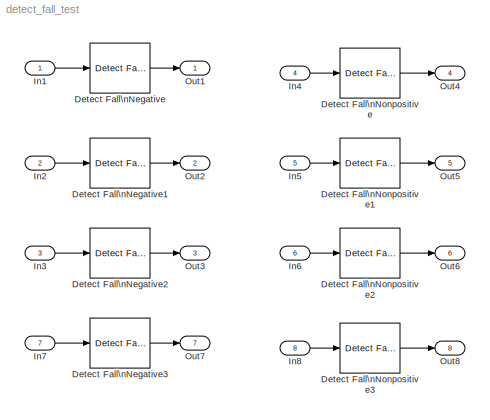
MODEL detect_fall_test
KIND model
BLOCK [Reference] Detect Fall\nNegative  REF=simulink/Logic and Bit\nOperations/Detect Fall\nNegative
  InputProcessing = Inherited
  OutDataTypeStr = boolean
  Ports = [1, 1]
  SID = 103
  SourceBlock = simulink/Logic and Bit\nOperations/Detect Fall\nNegative
  SourceProductBaseCode = SL
  SourceProductName = Simulink
  SourceType = Detect Fall Negative
  vinit = 0
BLOCK [Reference] Detect Fall\nNegative1  REF=simulink/Logic and Bit\nOperations/Detect Fall\nNegative
  InputProcessing = Inherited
  OutDataTypeStr = boolean
  Ports = [1, 1]
  SID = 105
  SourceBlock = simulink/Logic and Bit\nOperations/Detect Fall\nNegative
  SourceProductBaseCode = SL
  SourceProductName = Simulink
  SourceType = Detect Fall Negative
  vinit = 0
BLOCK [Reference] Detect Fall\nNegative2  REF=simulink/Logic and Bit\nOperations/Detect Fall\nNegative
  InputProcessing = Inherited
  OutDataTypeStr = boolean
  Ports = [1, 1]
  SID = 106
  SourceBlock = simulink/Logic and Bit\nOperations/Detect Fall\nNegative
  SourceProductBaseCode = SL
  SourceProductName = Simulink
  SourceType = Detect Fall Negative
  vinit = 0
BLOCK [Reference] Detect Fall\nNegative3  REF=simulink/Logic and Bit\nOperations/Detect Fall\nNegative
  InputProcessing = Inherited
  OutDataTypeStr = boolean
  Ports = [1, 1]
  SID = 111
  SourceBlock = simulink/Logic and Bit\nOperations/Detect Fall\nNegative
  SourceProductBaseCode = SL
  SourceProductName = Simulink
  SourceType = Detect Fall Negative
  vinit = 0
BLOCK [Reference] Detect Fall\nNonpositive  REF=simulink/Logic and Bit\nOperations/Detect Fall\nNonpositive
  InputProcessing = Inherited
  OutDataTypeStr = boolean
  Ports = [1, 1]
  SID = 104
  SourceBlock = simulink/Logic and Bit\nOperations/Detect Fall\nNonpositive
  SourceProductBaseCode = SL
  SourceProductName = Simulink
  SourceType = Detect Fall Nonpositive
  vinit = 0
BLOCK [Reference] Detect Fall\nNonpositive1  REF=simulink/Logic and Bit\nOperations/Detect Fall\nNonpositive
  InputProcessing = Inherited
  OutDataTypeStr = boolean
  Ports = [1, 1]
  SID = 107
  SourceBlock = simulink/Logic and Bit\nOperations/Detect Fall\nNonpositive
  SourceProductBaseCode = SL
  SourceProductName = Simulink
  SourceType = Detect Fall Nonpositive
  vinit = 0
BLOCK [Reference] Detect Fall\nNonpositive2  REF=simulink/Logic and Bit\nOperations/Detect Fall\nNonpositive
  InputProcessing = Inherited
  OutDataTypeStr = boolean
  Ports = [1, 1]
  SID = 108
  SourceBlock = simulink/Logic and Bit\nOperations/Detect Fall\nNonpositive
  SourceProductBaseCode = SL
  SourceProductName = Simulink
  SourceType = Detect Fall Nonpositive
  vinit = 0
BLOCK [Reference] Detect Fall\nNonpositive3  REF=simulink/Logic and Bit\nOperations/Detect Fall\nNonpositive
  InputProcessing = Inherited
  OutDataTypeStr = boolean
  Ports = [1, 1]
  SID = 112
  SourceBlock = simulink/Logic and Bit\nOperations/Detect Fall\nNonpositive
  SourceProductBaseCode = SL
  SourceProductName = Simulink
  SourceType = Detect Fall Nonpositive
  vinit = 0
BLOCK [Inport] In1
  IconDisplay = Port number
  PortDimensions = 1
  SID = 1
BLOCK [Inport] In2
  IconDisplay = Port number
  Port = 2
  PortDimensions = 5
  SID = 77
BLOCK [Inport] In3
  IconDisplay = Port number
  OutDataTypeStr = int8
  Port = 3
  PortDimensions = [2 3]
  SID = 80
BLOCK [Inport] In4
  IconDisplay = Port number
  Port = 4
  PortDimensions = 1
  SID = 89
BLOCK [Inport] In5
  IconDisplay = Port number
  Port = 5
  PortDimensions = 5
  SID = 90
BLOCK [Inport] In6
  IconDisplay = Port number
  OutDataTypeStr = int8
  Port = 6
  PortDimensions = [2 3]
  SID = 91
BLOCK [Inport] In7
  IconDisplay = Port number
  OutDataTypeStr = boolean
  Port = 7
  PortDimensions = 1
  SID = 109
BLOCK [Inport] In8
  IconDisplay = Port number
  OutDataTypeStr = boolean
  Port = 8
  PortDimensions = 1
  SID = 110
BLOCK [Outport] Out1
  IconDisplay = Port number
  SID = 55
BLOCK [Outport] Out2
  IconDisplay = Port number
  Port = 2
  SID = 79
BLOCK [Outport] Out3
  IconDisplay = Port number
  Port = 3
  SID = 82
BLOCK [Outport] Out4
  IconDisplay = Port number
  Port = 4
  SID = 97
BLOCK [Outport] Out5
  IconDisplay = Port number
  Port = 5
  SID = 98
BLOCK [Outport] Out6
  IconDisplay = Port number
  Port = 6
  SID = 99
BLOCK [Outport] Out7
  IconDisplay = Port number
  Port = 7
  SID = 113
BLOCK [Outport] Out8
  IconDisplay = Port number
  Port = 8
  SID = 114
LINE Detect Fall\nNegative1:1 -> Out2:1
LINE Detect Fall\nNegative2:1 -> Out3:1
LINE Detect Fall\nNegative3:1 -> Out7:1
LINE Detect Fall\nNegative:1 -> Out1:1
LINE Detect Fall\nNonpositive1:1 -> Out5:1
LINE Detect Fall\nNonpositive2:1 -> Out6:1
LINE Detect Fall\nNonpositive3:1 -> Out8:1
LINE Detect Fall\nNonpositive:1 -> Out4:1
LINE In1:1 -> Detect Fall\nNegative:1
LINE In2:1 -> Detect Fall\nNegative1:1
LINE In3:1 -> Detect Fall\nNegative2:1
LINE In4:1 -> Detect Fall\nNonpositive:1
LINE In5:1 -> Detect Fall\nNonpositive1:1
LINE In6:1 -> Detect Fall\nNonpositive2:1
LINE In7:1 -> Detect Fall\nNegative3:1
LINE In8:1 -> Detect Fall\nNonpositive3:1
